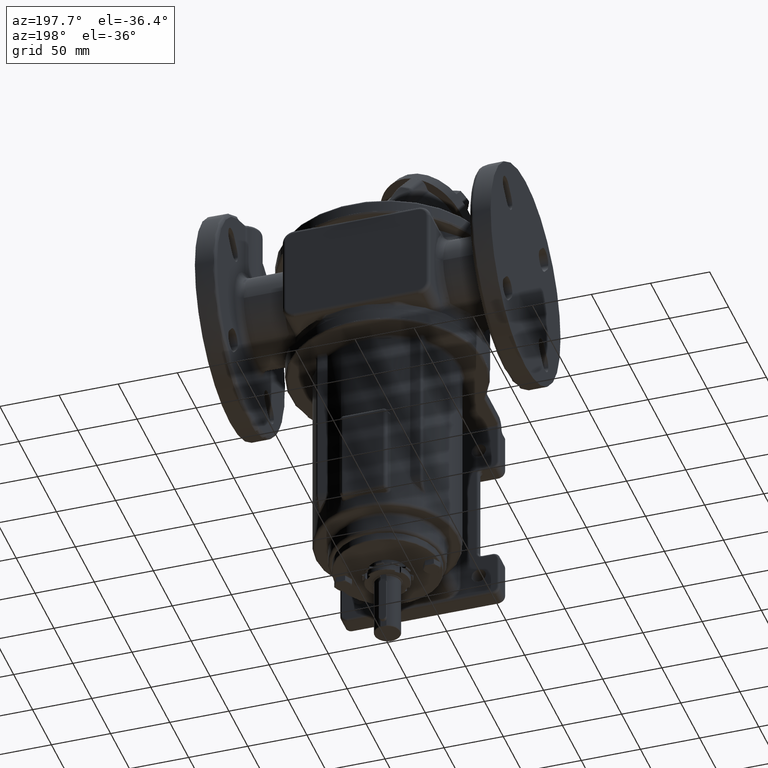
[diagram: clean part render]
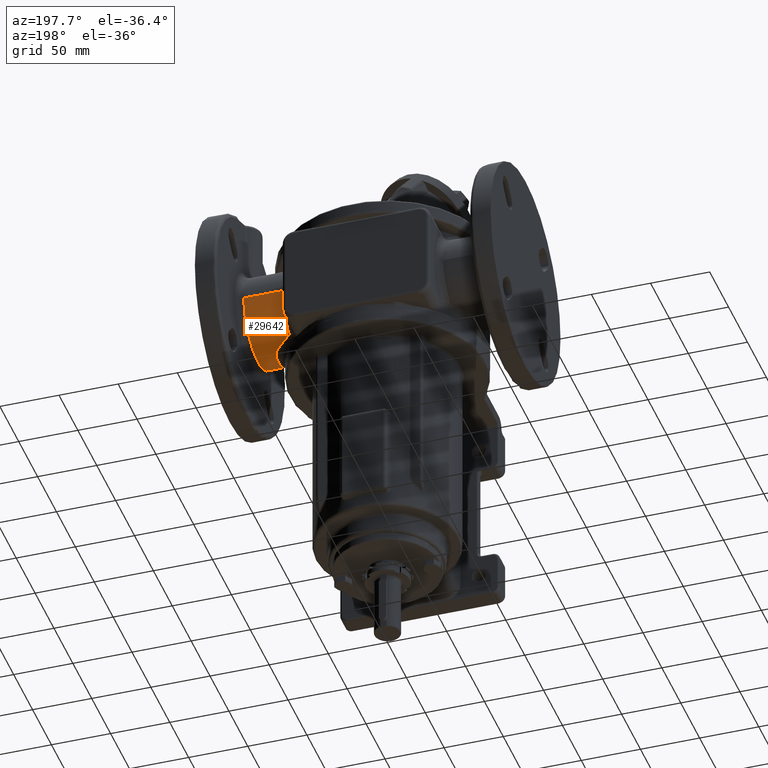
[diagram: same view with one face highlighted and labeled with its STEP entity id]
A machine part, auxiliary view. The second image highlights one B-rep face of the part: STEP entity #29642.
In plain terms, the highlighted cylindrical surface (partial cylindrical patch) has radius 38 mm, axis along (1, 0, 0).
Its self-contained STEP definition (entity closure, byte-faithful):
#6917=CARTESIAN_POINT('',(8.749999990084E1,-1.2E1,5.E1));
#6918=CARTESIAN_POINT('',(8.750004016758E1,-1.199999999598E1,4.795709205604E1));
#6919=CARTESIAN_POINT('',(8.747566660189E1,-1.166979843058E1,4.387040542267E1));
#6920=CARTESIAN_POINT('',(8.737295769186E1,-1.019548930125E1,3.789696935269E1));
#6921=CARTESIAN_POINT('',(8.721148579794E1,-7.779205596468E0,3.223562195558E1));
#6922=CARTESIAN_POINT('',(8.699874260842E1,-4.482653783178E0,2.703424113289E1));
#6923=CARTESIAN_POINT('',(8.674226470614E1,-3.907416117206E-1,
2.242907097502E1));
#6924=CARTESIAN_POINT('',(8.644958132445E1,4.390502427152E0,1.854105432450E1));
#6925=CARTESIAN_POINT('',(8.612814559785E1,9.736808113663E0,1.547248064510E1));
#6926=CARTESIAN_POINT('',(8.589961772100E1,1.358451925728E1,1.402705013952E1));
#6927=CARTESIAN_POINT('',(8.578297001874E1,1.555432305983E1,1.346388316663E1));
#6929=DIRECTION('',(1.E0,0.E0,0.E0));
#6930=VECTOR('',#6929,1.350000009916E1);
#6931=CARTESIAN_POINT('',(8.749999990084E1,-1.2E1,5.E1));
#6932=LINE('',#6931,#6930);
#6933=CARTESIAN_POINT('',(1.01E2,2.6E1,5.E1));
#6934=DIRECTION('',(-1.E0,0.E0,0.E0));
#6935=DIRECTION('',(0.E0,1.E0,0.E0));
#6936=AXIS2_PLACEMENT_3D('',#6933,#6934,#6935);
#6938=CARTESIAN_POINT('',(6.833791100036E1,5.101464308993E1,2.139462233979E1));
#6939=CARTESIAN_POINT('',(6.826607142404E1,5.237083156835E1,2.258057315299E1));
#6940=CARTESIAN_POINT('',(6.812361728316E1,5.491374652364E1,2.514521704110E1));
#6941=CARTESIAN_POINT('',(6.792454953378E1,5.814388769573E1,2.949317163642E1));
#6942=CARTESIAN_POINT('',(6.775093767005E1,6.072424968927E1,3.425276733051E1));
#6943=CARTESIAN_POINT('',(6.761342209756E1,6.260354940612E1,3.932682437187E1));
#6944=CARTESIAN_POINT('',(6.752253103492E1,6.374506392555E1,4.461197494863E1));
#6945=CARTESIAN_POINT('',(6.750000003837E1,6.399999999618E1,4.820448014279E1));
#6946=CARTESIAN_POINT('',(6.750000003837E1,6.4E1,5.E1));
#6948=CARTESIAN_POINT('',(6.811142885857E1,4.690987588574E1,1.827024912654E1));
#6949=CARTESIAN_POINT('',(6.818421052626E1,4.742843524240E1,1.861197925761E1));
#6950=CARTESIAN_POINT('',(6.829759080448E1,4.842239515821E1,1.930346118781E1));
#6951=CARTESIAN_POINT('',(6.837154393592E1,4.978736504793E1,2.035047934523E1));
#6952=CARTESIAN_POINT('',(6.835891108173E1,5.061820227135E1,2.104794535625E1));
#6953=CARTESIAN_POINT('',(6.833791100036E1,5.101464308993E1,2.139462233979E1));
#6955=CARTESIAN_POINT('',(7.900697467470E1,3.833306100542E1,1.405705067421E1));
#6956=CARTESIAN_POINT('',(7.764470984544E1,3.941436149018E1,1.442807601181E1));
#6957=CARTESIAN_POINT('',(7.501054731609E1,4.148149470563E1,1.524606881866E1));
#6958=CARTESIAN_POINT('',(7.137607766455E1,4.432508194179E1,1.666196408802E1));
#6959=CARTESIAN_POINT('',(6.916266657927E1,4.607298371304E1,1.771873795479E1));
#6960=CARTESIAN_POINT('',(6.811142885857E1,4.690987588574E1,1.827024912654E1));
#6962=CARTESIAN_POINT('',(8.327127024054E1,3.339715590420E1,1.272692547523E1));
#6963=CARTESIAN_POINT('',(8.294652551822E1,3.397672013736E1,1.284194488404E1));
#6964=CARTESIAN_POINT('',(8.220616200084E1,3.512097427262E1,1.309697887717E1));
#6965=CARTESIAN_POINT('',(8.078174758043E1,3.679474239004E1,1.355235153085E1));
#6966=CARTESIAN_POINT('',(7.963548864748E1,3.783417585823E1,1.388586881192E1));
#6967=CARTESIAN_POINT('',(7.900697467470E1,3.833306100542E1,1.405705067421E1));
#6969=CARTESIAN_POINT('',(8.504437301327E1,2.694248687091E1,1.201168971252E1));
#6970=CARTESIAN_POINT('',(8.501616690771E1,2.772063840415E1,1.203099560075E1));
#6971=CARTESIAN_POINT('',(8.484375457160E1,2.923849159802E1,1.211631757748E1));
#6972=CARTESIAN_POINT('',(8.424824839946E1,3.140439644980E1,1.236643399936E1));
#6973=CARTESIAN_POINT('',(8.363445063112E1,3.274899652548E1,1.259829279811E1));
#6974=CARTESIAN_POINT('',(8.327127024054E1,3.339715590420E1,1.272692547523E1));
#6976=CARTESIAN_POINT('',(8.578297001874E1,1.555432305983E1,1.346388316663E1));
#6977=CARTESIAN_POINT('',(8.571044892552E1,1.677896964282E1,1.311375667266E1));
#6978=CARTESIAN_POINT('',(8.551607916785E1,1.926587554668E1,1.253385821323E1));
#6979=CARTESIAN_POINT('',(8.522010455478E1,2.315985888093E1,1.204015792002E1));
#6980=CARTESIAN_POINT('',(8.508982013283E1,2.568869053947E1,1.198058312961E1));
#6981=CARTESIAN_POINT('',(8.504437301327E1,2.694248687091E1,1.201168971252E1));
#7017=DIRECTION('',(1.E0,0.E0,0.E0));
#7018=VECTOR('',#7017,3.349999996163E1);
#7019=CARTESIAN_POINT('',(6.750000003837E1,6.4E1,5.E1));
#7020=LINE('',#7019,#7018);
#7059=CARTESIAN_POINT('',(8.749999990084E1,-1.2E1,5.E1));
#15550=CARTESIAN_POINT('',(1.01E2,-1.2E1,5.E1));
#15552=VERTEX_POINT('',#15550);
#15554=CARTESIAN_POINT('',(1.01E2,6.4E1,5.E1));
#15555=VERTEX_POINT('',#15554);
#15671=VERTEX_POINT('',#7059);
#15672=VERTEX_POINT('',#6927);
#15673=VERTEX_POINT('',#6981);
#15674=VERTEX_POINT('',#6974);
#15677=VERTEX_POINT('',#6967);
#15679=VERTEX_POINT('',#6960);
#15682=VERTEX_POINT('',#6953);
#15684=VERTEX_POINT('',#6946);
#29619=CARTESIAN_POINT('',(1.07E2,2.6E1,5.E1));
#29620=DIRECTION('',(1.E0,0.E0,0.E0));
#29621=DIRECTION('',(0.E0,1.E0,0.E0));
#29622=AXIS2_PLACEMENT_3D('',#29619,#29620,#29621);
#29623=CYLINDRICAL_SURFACE('',#29622,3.8E1);
#29625=ORIENTED_EDGE('',*,*,#29624,.F.);
#29627=ORIENTED_EDGE('',*,*,#29626,.T.);
#29629=ORIENTED_EDGE('',*,*,#29628,.F.);
#29631=ORIENTED_EDGE('',*,*,#29630,.F.);
#29633=ORIENTED_EDGE('',*,*,#29632,.F.);
#29634=ORIENTED_EDGE('',*,*,#28941,.F.);
#29635=ORIENTED_EDGE('',*,*,#29444,.F.);
#29636=ORIENTED_EDGE('',*,*,#29613,.F.);
#29637=ORIENTED_EDGE('',*,*,#23711,.F.);
#29639=ORIENTED_EDGE('',*,*,#29638,.F.);
#29640=EDGE_LOOP('',(#29625,#29627,#29629,#29631,#29633,#29634,#29635,#29636,
#29637,#29639));
#29641=FACE_OUTER_BOUND('',#29640,.F.);
#29642=ADVANCED_FACE('',(#29641),#29623,.T.);
#6928=B_SPLINE_CURVE_WITH_KNOTS('',3,(#6917,#6918,#6919,#6920,#6921,#6922,#6923,
#6924,#6925,#6926,#6927),.UNSPECIFIED.,.F.,.F.,(4,1,1,1,1,1,1,1,4),(0.E0,
1.25E-1,2.5E-1,3.75E-1,5.E-1,6.25E-1,7.5E-1,8.75E-1,1.E0),.UNSPECIFIED.);
#6937=CIRCLE('',#6936,3.8E1);
#6947=B_SPLINE_CURVE_WITH_KNOTS('',3,(#6938,#6939,#6940,#6941,#6942,#6943,#6944,
#6945,#6946),.UNSPECIFIED.,.F.,.F.,(4,1,1,1,1,1,4),(0.E0,1.666666666667E-1,
3.333333333333E-1,5.E-1,6.666666666667E-1,8.333333333333E-1,1.E0),
.UNSPECIFIED.);
#6954=B_SPLINE_CURVE_WITH_KNOTS('',3,(#6948,#6949,#6950,#6951,#6952,#6953),
.UNSPECIFIED.,.F.,.F.,(4,1,1,4),(0.E0,3.333333333333E-1,6.666666666667E-1,1.E0),
.UNSPECIFIED.);
#6961=B_SPLINE_CURVE_WITH_KNOTS('',3,(#6955,#6956,#6957,#6958,#6959,#6960),
.UNSPECIFIED.,.F.,.F.,(4,1,1,4),(0.E0,3.333333333333E-1,6.666666666667E-1,1.E0),
.UNSPECIFIED.);
#6968=B_SPLINE_CURVE_WITH_KNOTS('',3,(#6962,#6963,#6964,#6965,#6966,#6967),
.UNSPECIFIED.,.F.,.F.,(4,1,1,4),(0.E0,3.333333333333E-1,6.666666666667E-1,1.E0),
.UNSPECIFIED.);
#6975=B_SPLINE_CURVE_WITH_KNOTS('',3,(#6969,#6970,#6971,#6972,#6973,#6974),
.UNSPECIFIED.,.F.,.F.,(4,1,1,4),(0.E0,3.333333333333E-1,6.666666666667E-1,1.E0),
.UNSPECIFIED.);
#6982=B_SPLINE_CURVE_WITH_KNOTS('',3,(#6976,#6977,#6978,#6979,#6980,#6981),
.UNSPECIFIED.,.F.,.F.,(4,1,1,4),(0.E0,3.333333333333E-1,6.666666666667E-1,1.E0),
.UNSPECIFIED.);
#23711=EDGE_CURVE('',#15673,#15674,#6975,.T.);
#28941=EDGE_CURVE('',#15679,#15682,#6954,.T.);
#29444=EDGE_CURVE('',#15677,#15679,#6961,.T.);
#29613=EDGE_CURVE('',#15674,#15677,#6968,.T.);
#29624=EDGE_CURVE('',#15671,#15672,#6928,.T.);
#29626=EDGE_CURVE('',#15671,#15552,#6932,.T.);
#29628=EDGE_CURVE('',#15555,#15552,#6937,.T.);
#29630=EDGE_CURVE('',#15684,#15555,#7020,.T.);
#29632=EDGE_CURVE('',#15682,#15684,#6947,.T.);
#29638=EDGE_CURVE('',#15672,#15673,#6982,.T.);